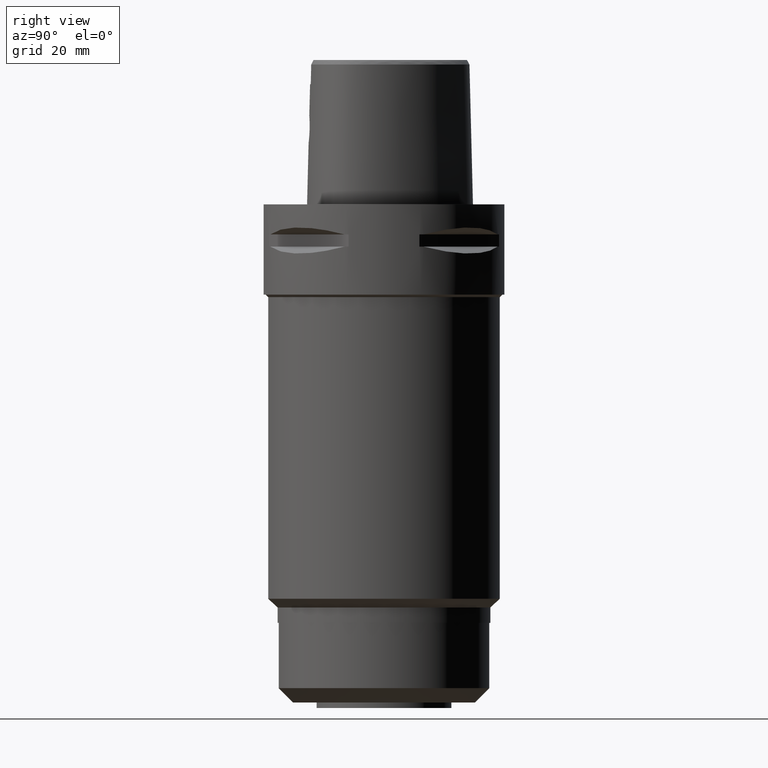
[diagram: clean part render]
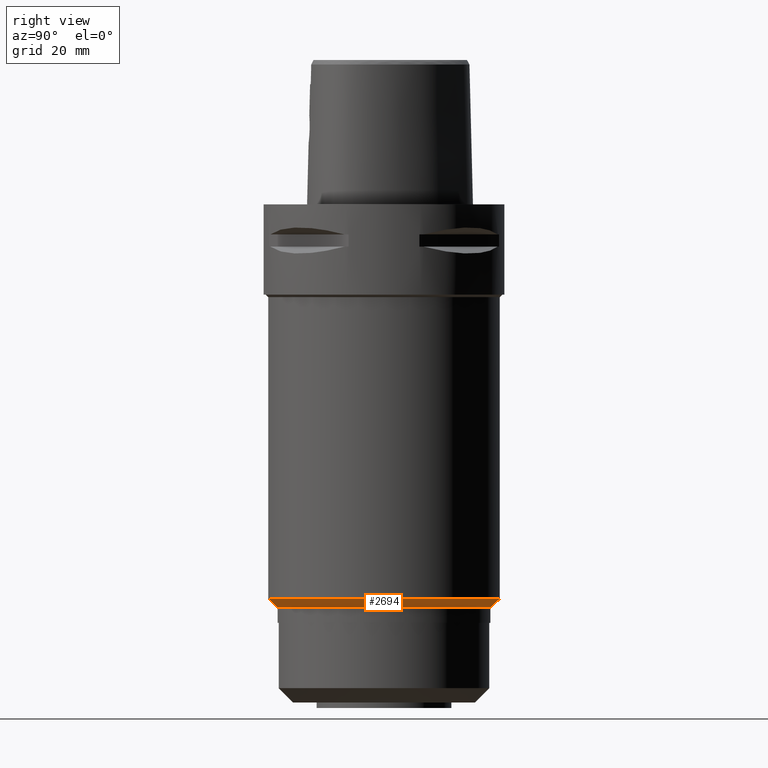
[diagram: same view with one face highlighted and labeled with its STEP entity id]
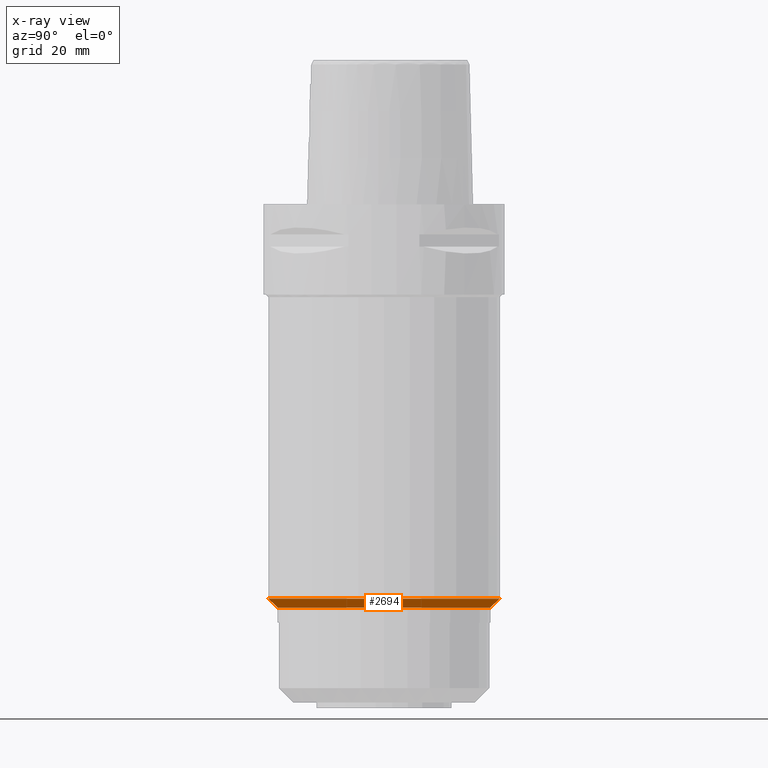
[diagram: x-ray of the same camera — body ghosted, the highlighted face saturated]
A machine part, right view. The second image highlights one B-rep face of the part: STEP entity #2694.
The next image is the same camera in x-ray: the body ghosted, the highlighted face saturated — about 0% of this face is hidden behind the body in this view.
In plain terms, the highlighted conical surface has half-angle 47.5 deg.
Its self-contained STEP definition (entity closure, byte-faithful):
#572=DIRECTION('',(0.E0,7.372773368075E-1,-6.755902076185E-1));
#573=VECTOR('',#572,4.272476370495E0);
#574=CARTESIAN_POINT('',(0.E0,-3.850000000001E1,-1.311E2));
#575=LINE('',#574,#573);
#587=DIRECTION('',(0.E0,-7.372773368075E-1,-6.755902076185E-1));
#588=VECTOR('',#587,4.272476370495E0);
#589=CARTESIAN_POINT('',(0.E0,3.850000000001E1,-1.311E2));
#590=LINE('',#589,#588);
#594=CARTESIAN_POINT('',(0.E0,0.E0,-1.339864431982E2));
#595=DIRECTION('',(0.E0,0.E0,-1.E0));
#596=DIRECTION('',(0.E0,1.E0,0.E0));
#597=AXIS2_PLACEMENT_3D('',#594,#595,#596);
#602=CARTESIAN_POINT('',(0.E0,0.E0,-1.311E2));
#603=DIRECTION('',(0.E0,0.E0,1.E0));
#604=DIRECTION('',(0.E0,-1.E0,0.E0));
#605=AXIS2_PLACEMENT_3D('',#602,#603,#604);
#1653=CARTESIAN_POINT('',(0.E0,3.850000000001E1,-1.311E2));
#1654=VERTEX_POINT('',#1653);
#1655=CARTESIAN_POINT('',(0.E0,-3.850000000001E1,-1.311E2));
#1656=VERTEX_POINT('',#1655);
#1657=CARTESIAN_POINT('',(0.E0,3.534999999999E1,-1.339864431982E2));
#1658=VERTEX_POINT('',#1657);
#1659=CARTESIAN_POINT('',(0.E0,-3.534999999999E1,-1.339864431982E2));
#1660=VERTEX_POINT('',#1659);
#2682=CARTESIAN_POINT('',(0.E0,0.E0,-1.325432215991E2));
#2683=DIRECTION('',(0.E0,0.E0,1.E0));
#2684=DIRECTION('',(0.E0,1.E0,0.E0));
#2685=AXIS2_PLACEMENT_3D('',#2682,#2683,#2684);
#2686=CONICAL_SURFACE('',#2685,3.6925E1,4.75E1);
#2687=ORIENTED_EDGE('',*,*,#2672,.T.);
#2689=ORIENTED_EDGE('',*,*,#2688,.T.);
#2690=ORIENTED_EDGE('',*,*,#2675,.F.);
#2691=ORIENTED_EDGE('',*,*,#2646,.T.);
#2692=EDGE_LOOP('',(#2687,#2689,#2690,#2691));
#2693=FACE_OUTER_BOUND('',#2692,.F.);
#598=CIRCLE('',#597,3.534999999999E1);
#606=CIRCLE('',#605,3.850000000001E1);
#2646=EDGE_CURVE('',#1656,#1654,#606,.T.);
#2672=EDGE_CURVE('',#1654,#1658,#590,.T.);
#2675=EDGE_CURVE('',#1656,#1660,#575,.T.);
#2688=EDGE_CURVE('',#1658,#1660,#598,.T.);
#2694=ADVANCED_FACE('',(#2693),#2686,.T.);